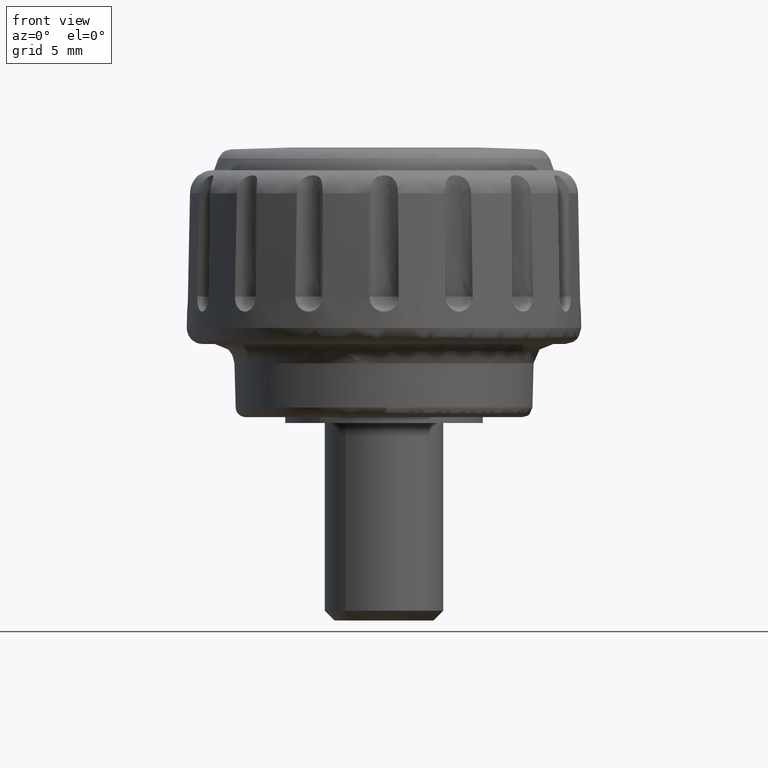
[diagram: clean part render]
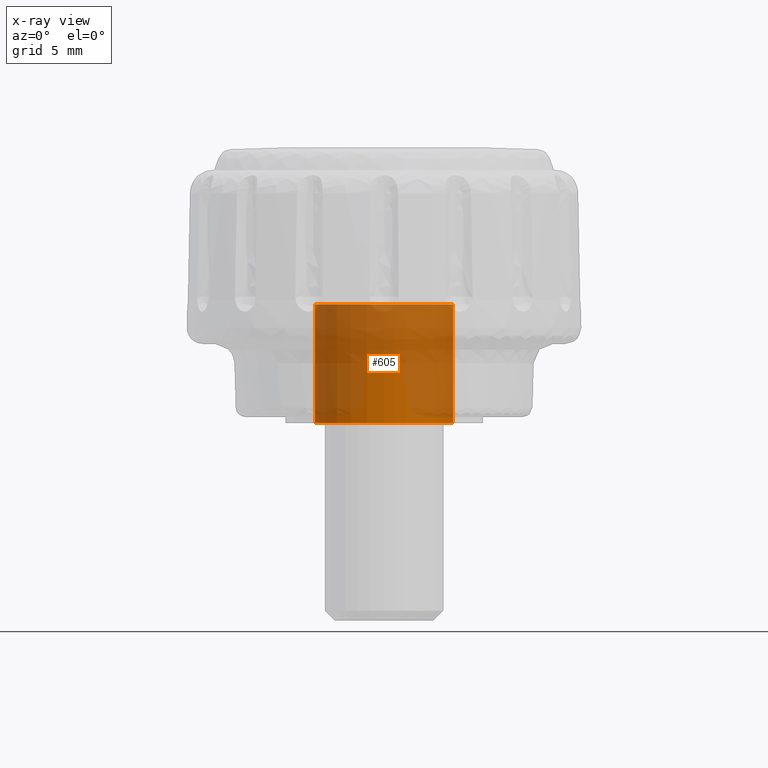
[diagram: x-ray — body ghosted, one internal face saturated and labeled with its STEP entity id]
A machine part, front view, then the same camera in x-ray: the body is ghosted and one INTERNAL B-rep face — a face not visible from any outside direction — is saturated and labeled: STEP entity #605.
In plain terms, the highlighted face is a freeform B-spline surface patch.
Its self-contained STEP definition (entity closure, byte-faithful):
#437=CARTESIAN_POINT('',(2.260097134337089,2.672444750291627,6.150000000000001));
#438=CARTESIAN_POINT('',(2.336581354930514,2.607761741310302,6.150000000000001));
#439=CARTESIAN_POINT('',(2.409241014928138,2.538810298543006,6.150000000000001));
#440=CARTESIAN_POINT('',(4.948051313471143,0.129569283614868,6.150000000000002));
#441=CARTESIAN_POINT('',(2.538810298543006,-2.409241014928138,6.150000000000001));
#442=CARTESIAN_POINT('',(0.129569283614868,-4.948051313471143,6.150000000000002));
#443=CARTESIAN_POINT('',(-2.409241014928138,-2.538810298543006,6.150000000000001));
#444=CARTESIAN_POINT('',(-4.948051313471143,-0.129569283614868,6.150000000000002));
#445=CARTESIAN_POINT('',(-2.538810298543006,2.409241014928138,6.150000000000001));
#446=CARTESIAN_POINT('',(2.260097134337089,2.672444750291627,-0.153750000000000));
#447=CARTESIAN_POINT('',(2.336581354930514,2.607761741310302,-0.153750000000001));
#448=CARTESIAN_POINT('',(2.409241014928138,2.538810298543006,-0.153750000000001));
#449=CARTESIAN_POINT('',(4.948051313471143,0.129569283614868,-0.153750000000000));
#450=CARTESIAN_POINT('',(2.538810298543006,-2.409241014928138,-0.153750000000001));
#451=CARTESIAN_POINT('',(0.129569283614868,-4.948051313471143,-0.153750000000000));
#452=CARTESIAN_POINT('',(-2.409241014928138,-2.538810298543006,-0.153750000000001));
#453=CARTESIAN_POINT('',(-4.948051313471143,-0.129569283614868,-0.153750000000000));
#454=CARTESIAN_POINT('',(-2.538810298543006,2.409241014928138,-0.153750000000001));
#462=(BOUNDED_SURFACE()B_SPLINE_SURFACE(2,1,((#437,#446),(#438,#447),(#439,#448),(#440,#449),(#441,#450),(#442,#451),(#443,#452),(#444,#453),(#445,#454)),.UNSPECIFIED.,.F.,.F.,.U.)B_SPLINE_SURFACE_WITH_KNOTS((3,2,2,2,3),(2,2),(0.0,0.231959594928934,6.030949468152262,11.829939341375590,17.628929214598919),(0.0,6.303750000000003),.UNSPECIFIED.)GEOMETRIC_REPRESENTATION_ITEM()RATIONAL_B_SPLINE_SURFACE(((0.977505800795127,0.977505800795127),(0.988284271247462,0.988284271247462),(1.0,1.0),(0.707106781186548,0.707106781186548),(1.0,1.0),(0.707106781186548,0.707106781186548),(1.0,1.0),(0.707106781186548,0.707106781186548),(1.0,1.0)))REPRESENTATION_ITEM('')SURFACE());
#463=CARTESIAN_POINT('',(2.260097187857091,2.672444801970173,6.000000000000217));
#464=VERTEX_POINT('',#463);
#465=CARTESIAN_POINT('',(3.500000000000000,0.0,6.0));
#466=VERTEX_POINT('',#465);
#467=CARTESIAN_POINT('',(2.260097187857091,2.672444801970173,6.000000000000217));
#468=CARTESIAN_POINT('',(2.429416991737461,2.529287777269017,6.000000000000227));
#469=CARTESIAN_POINT('',(2.690652397124286,2.261838473715565,6.000000000000162));
#470=CARTESIAN_POINT('',(2.997079275943844,1.827366298827222,6.000000000000125));
#471=CARTESIAN_POINT('',(3.239881565427049,1.363188206881612,6.000000000000173));
#472=CARTESIAN_POINT('',(3.443984007964450,0.752265268638107,5.999999999999951));
#473=CARTESIAN_POINT('',(3.500054709974910,0.269241309807318,6.000000000000105));
#474=CARTESIAN_POINT('',(3.500000000000000,0.0,6.0));
#475=B_SPLINE_CURVE_WITH_KNOTS('',3,(#467,#468,#469,#470,#471,#472,#473,#474),.UNSPECIFIED.,.F.,.U.,(4,1,1,1,1,4),(4.754806E-009,0.665177311307889,1.116548640218589,1.591673605562683,2.233095775602788,3.040811541435736),.UNSPECIFIED.);
#476=EDGE_CURVE('',#464,#466,#475,.T.);
#477=ORIENTED_EDGE('',*,*,#476,.T.);
#478=CARTESIAN_POINT('',(-0.000000300245722,-3.499999999999987,6.0));
#479=VERTEX_POINT('',#478);
#480=CARTESIAN_POINT('',(3.500000000000000,0.0,6.0));
#481=CARTESIAN_POINT('',(3.500079965186156,-0.286352240965781,5.999999999999963));
#482=CARTESIAN_POINT('',(3.446978412353442,-0.715825517557513,6.000000000000067));
#483=CARTESIAN_POINT('',(3.262853212281776,-1.296986564451299,5.999999999999940));
#484=CARTESIAN_POINT('',(3.080570670897573,-1.679358175615163,6.000000000000029));
#485=CARTESIAN_POINT('',(2.839063888282619,-2.060729893670484,5.999999999999981));
#486=CARTESIAN_POINT('',(2.540785628067386,-2.428784093169970,6.000000000000111));
#487=CARTESIAN_POINT('',(2.085771214104976,-2.836159775879257,5.999999999999952));
#488=CARTESIAN_POINT('',(1.586789740193540,-3.137317615451624,6.000000000000007));
#489=CARTESIAN_POINT('',(1.140597702676809,-3.315715116926650,6.000000000000022));
#490=CARTESIAN_POINT('',(0.644248461415710,-3.456377109351551,5.999999999999921));
#491=CARTESIAN_POINT('',(0.272032833567465,-3.500066152363860,6.000000000000078));
#492=CARTESIAN_POINT('',(-0.000000300245722,-3.499999999999987,6.0));
#493=B_SPLINE_CURVE_WITH_KNOTS('',3,(#480,#481,#482,#483,#484,#485,#486,#487,#488,#489,#490,#491,#492),.UNSPECIFIED.,.F.,.U.,(4,1,1,1,1,1,1,1,1,1,4),(0.000000014415686,0.859029835557738,1.288545415572155,1.825441915997248,2.126102105052211,2.641519942743514,3.242834335477133,3.951539606979383,4.381057079739231,4.681718697739611,5.497795937438629),.UNSPECIFIED.);
#494=EDGE_CURVE('',#466,#479,#493,.T.);
#495=ORIENTED_EDGE('',*,*,#494,.T.);
#496=CARTESIAN_POINT('',(-3.500000000000000,0.0,6.0));
#497=VERTEX_POINT('',#496);
#498=CARTESIAN_POINT('',(-0.000000300245722,-3.499999999999987,6.0));
#499=CARTESIAN_POINT('',(-0.229074060773420,-3.500027077042491,6.000000000000026));
#500=CARTESIAN_POINT('',(-0.644263957672680,-3.459094210263441,5.999999999999915));
#501=CARTESIAN_POINT('',(-1.148642326139913,-3.316164196676465,6.000000000000105));
#502=CARTESIAN_POINT('',(-1.564139371788520,-3.139558069905052,5.999999999999859));
#503=CARTESIAN_POINT('',(-1.913733287275215,-2.941511157950024,6.000000000000211));
#504=CARTESIAN_POINT('',(-2.350493165846470,-2.615556469441838,5.999999999999937));
#505=CARTESIAN_POINT('',(-2.738972010558611,-2.210016703812155,5.999999999999949));
#506=CARTESIAN_POINT('',(-3.039231475412263,-1.754550582259980,6.000000000000001));
#507=CARTESIAN_POINT('',(-3.235395920971782,-1.355746833550556,6.000000000000232));
#508=CARTESIAN_POINT('',(-3.364774925255634,-0.990625407798671,5.999999999999902));
#509=CARTESIAN_POINT('',(-3.471251022953497,-0.529727239715443,6.000000000000057));
#510=CARTESIAN_POINT('',(-3.500019356174162,-0.207600048023187,5.999999999999893));
#511=CARTESIAN_POINT('',(-3.500000000000000,0.0,6.0));
#512=B_SPLINE_CURVE_WITH_KNOTS('',3,(#498,#499,#500,#501,#502,#503,#504,#505,#506,#507,#508,#509,#510,#511),.UNSPECIFIED.,.F.,.U.,(4,1,1,1,1,1,1,1,1,1,1,4),(0.000000014441762,0.687219924331425,1.245593656627449,1.567731249864976,2.040202107041631,2.448243279641576,3.199883198624610,3.715305720595162,4.080394987303595,4.531387684828163,4.874999549139932,5.497795598991178),.UNSPECIFIED.);
#513=EDGE_CURVE('',#479,#497,#512,.T.);
#514=ORIENTED_EDGE('',*,*,#513,.T.);
#515=CARTESIAN_POINT('',(-2.538810236624910,2.409240971280937,5.999999999999808));
#516=VERTEX_POINT('',#515);
#517=CARTESIAN_POINT('',(-3.500000000000000,0.0,6.0));
#518=CARTESIAN_POINT('',(-3.500030613503981,0.242200712483792,5.999999999999996));
#519=CARTESIAN_POINT('',(-3.450966244505859,0.712743971666158,5.999999999999930));
#520=CARTESIAN_POINT('',(-3.269045995670641,1.289663681277164,5.999999999999901));
#521=CARTESIAN_POINT('',(-2.983052768139487,1.867332616100143,5.999999999999848));
#522=CARTESIAN_POINT('',(-2.734168545199181,2.203481649055413,5.999999999999829));
#523=CARTESIAN_POINT('',(-2.538810236624910,2.409240971280937,5.999999999999808));
#524=B_SPLINE_CURVE_WITH_KNOTS('',3,(#517,#518,#519,#520,#521,#522,#523),.UNSPECIFIED.,.F.,.U.,(4,1,1,1,4),(3.348749E-009,0.726597023202508,1.411670375442356,1.806111356731573,2.657267663879350),.UNSPECIFIED.);
#525=EDGE_CURVE('',#497,#516,#524,.T.);
#526=ORIENTED_EDGE('',*,*,#525,.T.);
#527=CARTESIAN_POINT('',(-2.538810236714548,2.409240971186478,-1.665335E-016));
#528=VERTEX_POINT('',#527);
#529=CARTESIAN_POINT('',(-2.538810236624910,2.409240971280937,5.999999999999808));
#530=CARTESIAN_POINT('',(-2.538810236714548,2.409240971186478,-1.665335E-016));
#531=QUASI_UNIFORM_CURVE('',1,(#529,#530),.UNSPECIFIED.,.F.,.U.);
#532=EDGE_CURVE('',#516,#528,#531,.T.);
#533=ORIENTED_EDGE('',*,*,#532,.T.);
#534=CARTESIAN_POINT('',(-3.500000000000000,0.0,0.0));
#535=VERTEX_POINT('',#534);
#536=CARTESIAN_POINT('',(-3.500000000000000,0.0,0.0));
#537=CARTESIAN_POINT('',(-3.500021219623575,0.207600697567038,-1.434994E-017));
#538=CARTESIAN_POINT('',(-3.471588807809497,0.525909906766480,-3.635236E-017));
#539=CARTESIAN_POINT('',(-3.363210959822957,0.998587356130804,-6.902514E-017));
#540=CARTESIAN_POINT('',(-3.201773216010277,1.449232200071693,-1.001750E-016));
#541=CARTESIAN_POINT('',(-2.928121519562291,1.948719501523250,-1.347009E-016));
#542=CARTESIAN_POINT('',(-2.676959464940303,2.263683558723611,-1.564721E-016));
#543=CARTESIAN_POINT('',(-2.538810236714548,2.409240971186478,-1.665335E-016));
#544=B_SPLINE_CURVE_WITH_KNOTS('',3,(#536,#537,#538,#539,#540,#541,#542,#543),.UNSPECIFIED.,.F.,.U.,(4,1,1,1,1,4),(3.347784E-009,0.622796931772288,0.954956693699846,1.453189712823719,2.055230811457502,2.657267663749130),.UNSPECIFIED.);
#545=EDGE_CURVE('',#535,#528,#544,.T.);
#546=ORIENTED_EDGE('',*,*,#545,.F.);
#547=CARTESIAN_POINT('',(-0.000000300245722,-3.499999999999987,0.0));
#548=VERTEX_POINT('',#547);
#549=CARTESIAN_POINT('',(-0.000000300245722,-3.499999999999987,0.0));
#550=CARTESIAN_POINT('',(-0.229076316322365,-3.500032561637370,0.0));
#551=CARTESIAN_POINT('',(-0.558356443182767,-3.467549388826034,0.0));
#552=CARTESIAN_POINT('',(-1.080437345141824,-3.340182391772883,0.0));
#553=CARTESIAN_POINT('',(-1.502373651566640,-3.175937169401955,0.0));
#554=CARTESIAN_POINT('',(-1.937666583174592,-2.925788682282063,0.0));
#555=CARTESIAN_POINT('',(-2.252380617334874,-2.687852376948861,0.0));
#556=CARTESIAN_POINT('',(-2.607332120410104,-2.354078840270929,0.0));
#557=CARTESIAN_POINT('',(-2.938765871716293,-1.937357027979310,0.0));
#558=CARTESIAN_POINT('',(-3.197971052626717,-1.448745454359274,0.0));
#559=CARTESIAN_POINT('',(-3.371365471209622,-0.977867743487013,0.0));
#560=CARTESIAN_POINT('',(-3.475209646989091,-0.515414576403760,0.0));
#561=CARTESIAN_POINT('',(-3.500006158712949,-0.164645210879733,0.0));
#562=CARTESIAN_POINT('',(-3.500000000000000,0.0,0.0));
#563=B_SPLINE_CURVE_WITH_KNOTS('',3,(#549,#550,#551,#552,#553,#554,#555,#556,#557,#558,#559,#560,#561,#562),.UNSPECIFIED.,.F.,.U.,(4,1,1,1,1,1,1,1,1,1,1,4),(0.000000014441762,0.687219924331425,0.987882609804609,1.610682892481590,2.040202107041631,2.491191847673409,2.791843893032822,3.500545216916908,4.080394987303595,4.445485466672805,5.003859269662371,5.497795598991178),.UNSPECIFIED.);
#564=EDGE_CURVE('',#548,#535,#563,.T.);
#565=ORIENTED_EDGE('',*,*,#564,.F.);
#566=CARTESIAN_POINT('',(3.500000000000000,0.0,0.0));
#567=VERTEX_POINT('',#566);
#568=CARTESIAN_POINT('',(3.500000000000000,0.0,0.0));
#569=CARTESIAN_POINT('',(3.500010156143425,-0.178963076012802,0.0));
#570=CARTESIAN_POINT('',(3.473039352928293,-0.529730485487074,0.0));
#571=CARTESIAN_POINT('',(3.369639095275807,-0.977333889472724,0.0));
#572=CARTESIAN_POINT('',(3.223539431438609,-1.381724762380201,0.0));
#573=CARTESIAN_POINT('',(3.055732884899797,-1.722881806247916,0.0));
#574=CARTESIAN_POINT('',(2.798962077790380,-2.120250232729146,0.0));
#575=CARTESIAN_POINT('',(2.489223955125508,-2.479324559778387,0.0));
#576=CARTESIAN_POINT('',(2.140660897447207,-2.778116478114439,0.0));
#577=CARTESIAN_POINT('',(1.791289048567369,-3.016241451241209,0.0));
#578=CARTESIAN_POINT('',(1.365181404837716,-3.239005150247916,0.0));
#579=CARTESIAN_POINT('',(0.751626938863111,-3.443789233443455,0.0));
#580=CARTESIAN_POINT('',(0.272030347901998,-3.500062458520731,0.0));
#581=CARTESIAN_POINT('',(-0.000000300245722,-3.499999999999987,0.0));
#582=B_SPLINE_CURVE_WITH_KNOTS('',3,(#568,#569,#570,#571,#572,#573,#574,#575,#576,#577,#578,#579,#580,#581),.UNSPECIFIED.,.F.,.U.,(4,1,1,1,1,1,1,1,1,1,1,4),(0.000000014415686,0.536888577737859,1.052311591416512,1.374449047216376,1.825441915997248,2.190533078605848,2.791844065093158,3.242834335477133,3.564975215528645,4.058919302631574,4.681718697739611,5.497795937438629),.UNSPECIFIED.);
#583=EDGE_CURVE('',#567,#548,#582,.T.);
#584=ORIENTED_EDGE('',*,*,#583,.F.);
#585=CARTESIAN_POINT('',(2.260097187787293,2.672444802029200,1.845628E-016));
#586=VERTEX_POINT('',#585);
#587=CARTESIAN_POINT('',(2.260097187787293,2.672444802029200,1.845628E-016));
#588=CARTESIAN_POINT('',(2.477826443828462,2.488413740166670,1.718534E-016));
#589=CARTESIAN_POINT('',(2.764898983047193,2.177982461627740,1.504146E-016));
#590=CARTESIAN_POINT('',(3.092808921989615,1.662707870419079,1.148290E-016));
#591=CARTESIAN_POINT('',(3.313581735422686,1.178328346084299,8.137703E-017));
#592=CARTESIAN_POINT('',(3.465645791279405,0.601823003590572,4.156275E-017));
#593=CARTESIAN_POINT('',(3.500016293716034,0.197970004442426,1.367209E-017));
#594=CARTESIAN_POINT('',(3.500000000000000,0.0,0.0));
#595=B_SPLINE_CURVE_WITH_KNOTS('',3,(#587,#588,#589,#590,#591,#592,#593,#594),.UNSPECIFIED.,.F.,.U.,(4,1,1,1,1,4),(4.755111E-009,0.855228347354481,1.259087121818472,1.829235288319402,2.446903181311340,3.040811541527147),.UNSPECIFIED.);
#596=EDGE_CURVE('',#586,#567,#595,.T.);
#597=ORIENTED_EDGE('',*,*,#596,.F.);
#598=CARTESIAN_POINT('',(2.260097187857091,2.672444801970173,6.000000000000217));
#599=CARTESIAN_POINT('',(2.260097187787293,2.672444802029200,1.845628E-016));
#600=QUASI_UNIFORM_CURVE('',1,(#598,#599),.UNSPECIFIED.,.F.,.U.);
#601=EDGE_CURVE('',#464,#586,#600,.T.);
#602=ORIENTED_EDGE('',*,*,#601,.F.);
#603=EDGE_LOOP('',(#477,#495,#514,#526,#533,#546,#565,#584,#597,#602));
#604=FACE_OUTER_BOUND('',#603,.T.);
#605=ADVANCED_FACE('',(#604),#462,.T.);